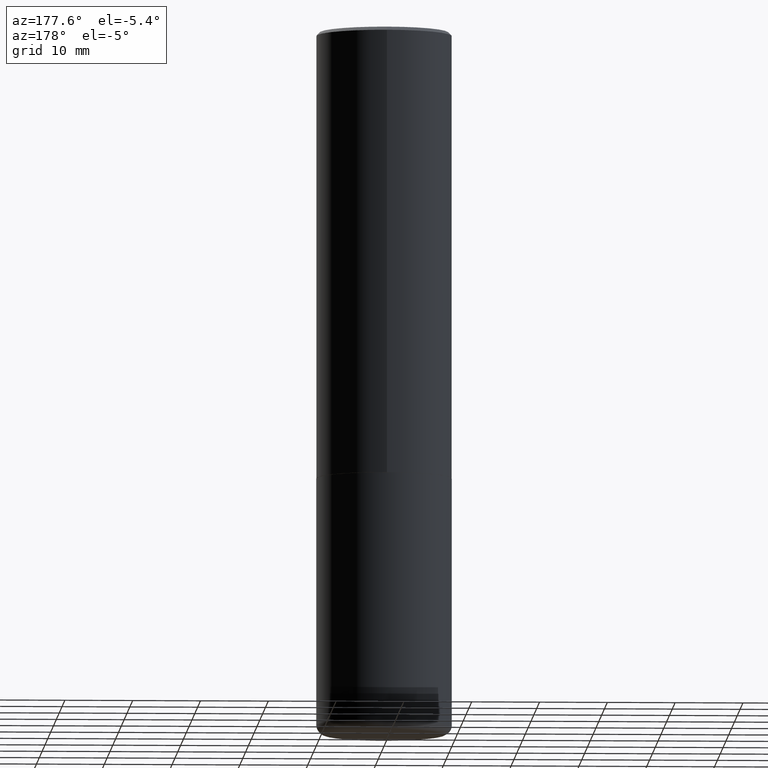
[diagram: clean part render]
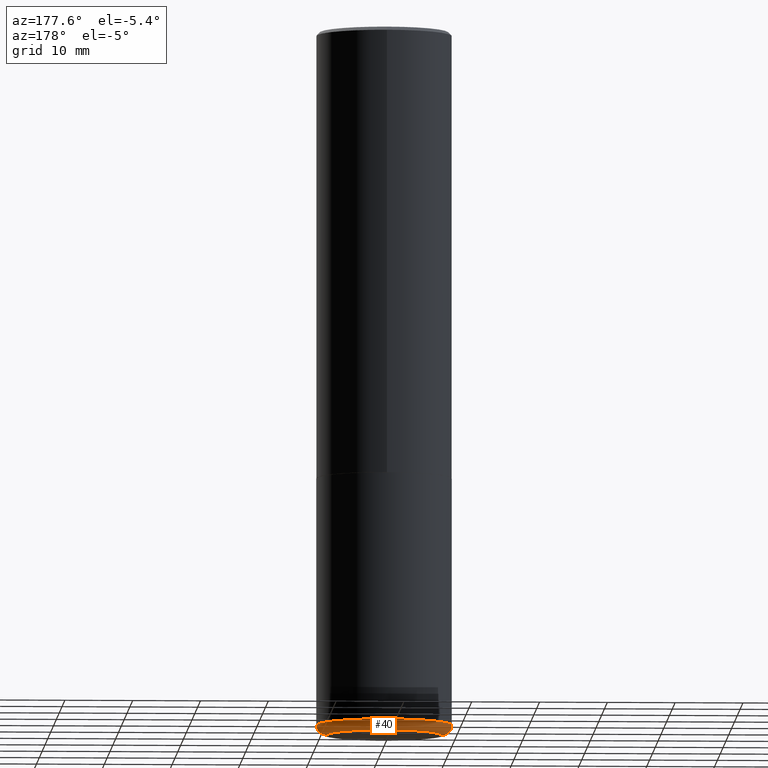
[diagram: same view with one face highlighted and labeled with its STEP entity id]
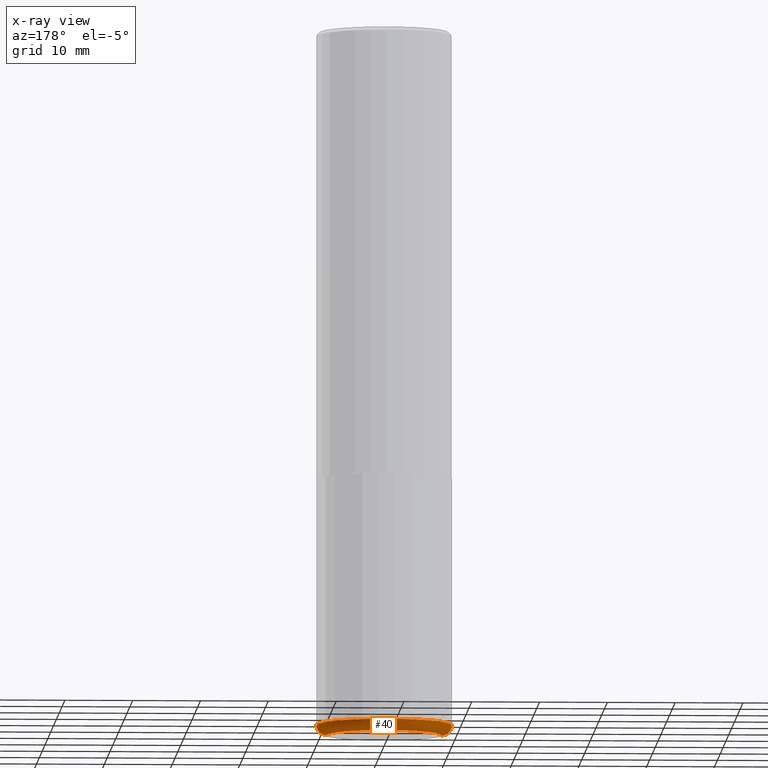
[diagram: x-ray of the same camera — body ghosted, the highlighted face saturated]
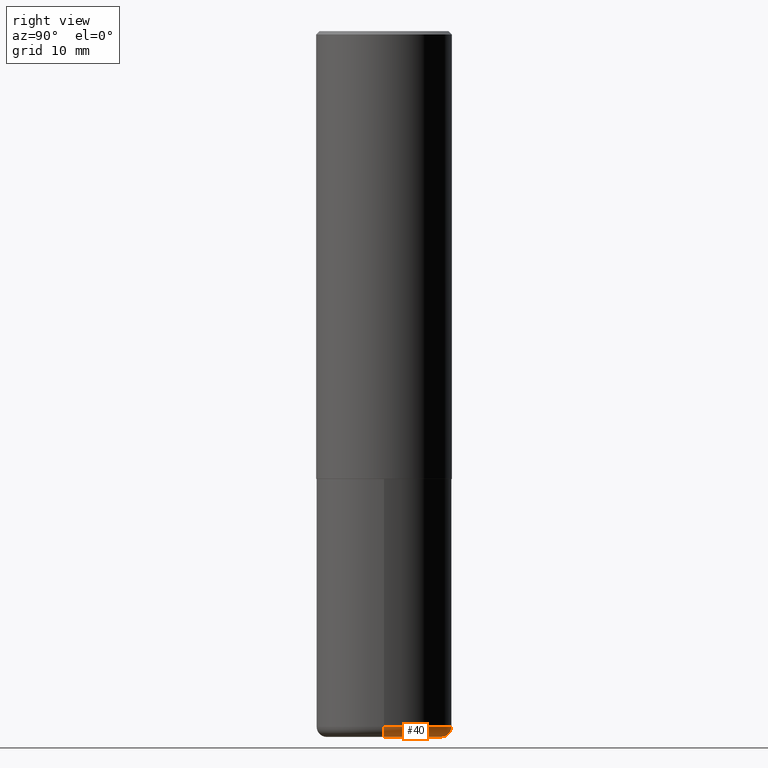
[diagram: same view with one face highlighted and labeled with its STEP entity id]
A machine part, auxiliary view. The second image highlights one B-rep face of the part: STEP entity #40.
The next image is the same camera in x-ray: the body ghosted, the highlighted face saturated — about 0% of this face is hidden behind the body in this view.
A second angle (right view) of the same face is appended — the face is thin or edge-on in the first view.
In plain terms, the highlighted toroidal blend (fillet) surface has major radius 8.4988 mm and minor (blend) radius 1.5011 mm.
Its self-contained STEP definition (entity closure, byte-faithful):
#8 = CIRCLE ( 'NONE', #110, 0.05910000000000026343 ) ;
#11 = ORIENTED_EDGE ( 'NONE', *, *, #166, .F. ) ;
#14 = VERTEX_POINT ( 'NONE', #291 ) ;
#20 = CIRCLE ( 'NONE', #401, 0.3346000000000000085 ) ;
#31 = ORIENTED_EDGE ( 'NONE', *, *, #163, .T. ) ;
#36 = DIRECTION ( 'NONE',  ( 1.000000000000000000, -6.982962677686264344E-15, 0.000000000000000000 ) ) ;
#38 = AXIS2_PLACEMENT_3D ( 'NONE', #241, #41, #144 ) ;
#39 = EDGE_CURVE ( 'NONE', #246, #14, #20, .T. ) ;
#40 = ADVANCED_FACE ( 'NONE', ( #195 ), #248, .T. ) ;
#41 = DIRECTION ( 'NONE',  ( -2.445468806185136597E-29, 3.491481338843145583E-15, 1.000000000000000000 ) ) ;
#51 = CARTESIAN_POINT ( 'NONE',  ( 0.3346000000000000085, -1.642602310672145667E-14, -4.035400000000000098 ) ) ;
#60 = DIRECTION ( 'NONE',  ( -2.445468806185136597E-29, 3.491481338843145583E-15, 1.000000000000000000 ) ) ;
#64 = VERTEX_POINT ( 'NONE', #209 ) ;
#70 = AXIS2_PLACEMENT_3D ( 'NONE', #51, #184, #36 ) ;
#74 = DIRECTION ( 'NONE',  ( -2.445468806185136597E-29, 3.491481338843145583E-15, 1.000000000000000000 ) ) ;
#76 = ORIENTED_EDGE ( 'NONE', *, *, #307, .F. ) ;
#94 = DIRECTION ( 'NONE',  ( 7.105427357601001859E-15, 1.000000000000000000, -3.491481338843145583E-15 ) ) ;
#110 = AXIS2_PLACEMENT_3D ( 'NONE', #370, #94, #218 ) ;
#114 = CIRCLE ( 'NONE', #38, 0.3937000000000001054 ) ;
#131 = DIRECTION ( 'NONE',  ( 1.000000000000000000, -6.982962677686264344E-15, 0.000000000000000000 ) ) ;
#144 = DIRECTION ( 'NONE',  ( 1.000000000000000000, -6.982962677686266711E-15, 0.000000000000000000 ) ) ;
#163 = EDGE_CURVE ( 'NONE', #14, #304, #8, .T. ) ;
#166 = EDGE_CURVE ( 'NONE', #246, #64, #192, .T. ) ;
#184 = DIRECTION ( 'NONE',  ( -6.982962677686266711E-15, -1.000000000000000000, 3.491481338843145583E-15 ) ) ;
#192 = CIRCLE ( 'NONE', #70, 0.05910000000000026343 ) ;
#195 = FACE_OUTER_BOUND ( 'NONE', #204, .T. ) ;
#204 = EDGE_LOOP ( 'NONE', ( #230, #31, #76, #11 ) ) ;
#209 = CARTESIAN_POINT ( 'NONE',  ( 0.3937000000000002164, -1.683871620097271431E-14, -4.035400000000000098 ) ) ;
#218 = DIRECTION ( 'NONE',  ( -1.000000000000000000, 7.105427357600993181E-15, 0.000000000000000000 ) ) ;
#230 = ORIENTED_EDGE ( 'NONE', *, *, #39, .T. ) ;
#234 = CARTESIAN_POINT ( 'NONE',  ( 0.3346000000000000085, -1.663236965384708707E-14, -4.094500000000000917 ) ) ;
#241 = CARTESIAN_POINT ( 'NONE',  ( 9.868444820479501934E-29, -1.408952379476762952E-14, -4.035400000000000098 ) ) ;
#246 = VERTEX_POINT ( 'NONE', #234 ) ;
#248 = TOROIDAL_SURFACE ( 'NONE', #259, 0.3346000000000000085, 0.05910000000000026343 ) ;
#259 = AXIS2_PLACEMENT_3D ( 'NONE', #351, #74, #391 ) ;
#291 = CARTESIAN_POINT ( 'NONE',  ( -0.3346000000000000085, -1.160525569606004165E-14, -4.094500000000000917 ) ) ;
#304 = VERTEX_POINT ( 'NONE', #388 ) ;
#307 = EDGE_CURVE ( 'NONE', #64, #304, #114, .T. ) ;
#351 = CARTESIAN_POINT ( 'NONE',  ( 9.868444820479501934E-29, -1.408952379476762952E-14, -4.035400000000000098 ) ) ;
#370 = CARTESIAN_POINT ( 'NONE',  ( -0.3346000000000000085, -1.171204780091433423E-14, -4.035400000000000098 ) ) ;
#388 = CARTESIAN_POINT ( 'NONE',  ( -0.3937000000000002164, -1.129211704408011394E-14, -4.035400000000000098 ) ) ;
#391 = DIRECTION ( 'NONE',  ( 1.000000000000000000, -6.982962677686268288E-15, 4.883557194083113462E-29 ) ) ;
#401 = AXIS2_PLACEMENT_3D ( 'NONE', #417, #60, #131 ) ;
#417 = CARTESIAN_POINT ( 'NONE',  ( 1.001297202692504327E-28, -1.429587034189326465E-14, -4.094500000000000917 ) ) ;